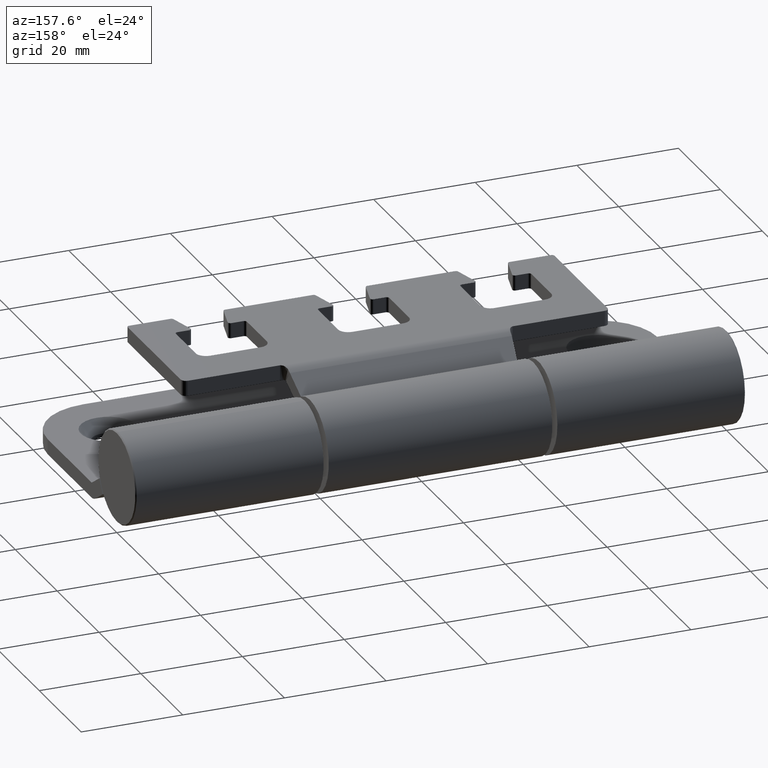
[diagram: clean part render]
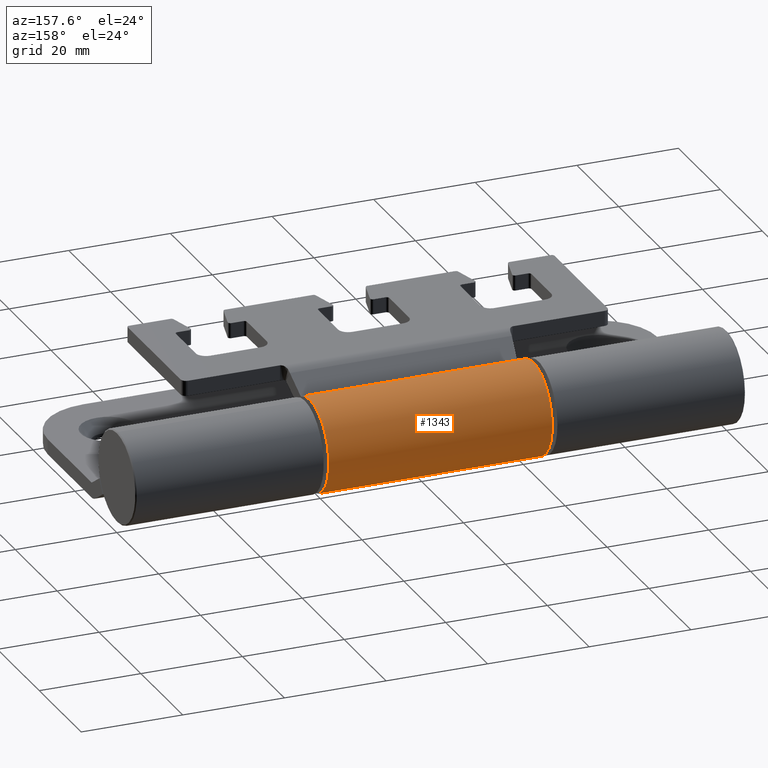
[diagram: same view with one face highlighted and labeled with its STEP entity id]
A machine part, auxiliary view. The second image highlights one B-rep face of the part: STEP entity #1343.
In plain terms, the highlighted cylindrical surface (bore or boss wall) has radius 9 mm, axis along (1, -0, 0).
Its self-contained STEP definition (entity closure, byte-faithful):
#1041 = DIRECTION ( 'NONE',  ( 0.0000000000000000000, -5.551115123125804900E-017, -1.000000000000000000 ) ) ;
#1097 = CARTESIAN_POINT ( 'NONE',  ( 35.00000000000001400, -3.469446951953614200E-015, 0.0000000000000000000 ) ) ;
#1127 = AXIS2_PLACEMENT_3D ( 'NONE', #10027, #13306, #6668 ) ;
#1343 = ADVANCED_FACE ( 'NONE', ( #10610, #10099 ), #14239, .T. ) ;
#1770 = AXIS2_PLACEMENT_3D ( 'NONE', #9552, #7299, #3870 ) ;
#2349 = ORIENTED_EDGE ( 'NONE', *, *, #13213, .T. ) ;
#2493 = EDGE_CURVE ( 'NONE', #6980, #6980, #9037, .T. ) ;
#3870 = DIRECTION ( 'NONE',  ( 0.0000000000000000000, -5.551115123125801200E-017, -1.000000000000000000 ) ) ;
#4376 = CARTESIAN_POINT ( 'NONE',  ( -22.00000000000001100, -4.996003610813221200E-016, -9.000000000000000000 ) ) ;
#4463 = DIRECTION ( 'NONE',  ( 1.000000000000000000, -1.102835513005753100E-016, 1.303805793039792300E-016 ) ) ;
#6668 = DIRECTION ( 'NONE',  ( 0.0000000000000000000, -5.551115123125801200E-017, -1.000000000000000000 ) ) ;
#6980 = VERTEX_POINT ( 'NONE', #7295 ) ;
#7295 = CARTESIAN_POINT ( 'NONE',  ( 22.00000000000001800, -4.996003610813221200E-016, -9.000000000000000000 ) ) ;
#7299 = DIRECTION ( 'NONE',  ( 1.000000000000000000, -1.102835513005753100E-016, 1.303805793039792300E-016 ) ) ;
#7869 = EDGE_LOOP ( 'NONE', ( #2349 ) ) ;
#8736 = CIRCLE ( 'NONE', #1127, 9.000000000000000000 ) ;
#9037 = CIRCLE ( 'NONE', #1770, 9.000000000000000000 ) ;
#9552 = CARTESIAN_POINT ( 'NONE',  ( 22.00000000000001800, 0.0000000000000000000, 0.0000000000000000000 ) ) ;
#10027 = CARTESIAN_POINT ( 'NONE',  ( -22.00000000000001100, 0.0000000000000000000, 0.0000000000000000000 ) ) ;
#10099 = FACE_OUTER_BOUND ( 'NONE', #14044, .T. ) ;
#10610 = FACE_OUTER_BOUND ( 'NONE', #7869, .T. ) ;
#10826 = AXIS2_PLACEMENT_3D ( 'NONE', #1097, #4463, #1041 ) ;
#10868 = ORIENTED_EDGE ( 'NONE', *, *, #2493, .F. ) ;
#13213 = EDGE_CURVE ( 'NONE', #13335, #13335, #8736, .T. ) ;
#13306 = DIRECTION ( 'NONE',  ( 1.000000000000000000, -1.102835513005753100E-016, 1.303805793039792300E-016 ) ) ;
#13335 = VERTEX_POINT ( 'NONE', #4376 ) ;
#14044 = EDGE_LOOP ( 'NONE', ( #10868 ) ) ;
#14239 = CYLINDRICAL_SURFACE ( 'NONE', #10826, 9.000000000000000000 ) ;